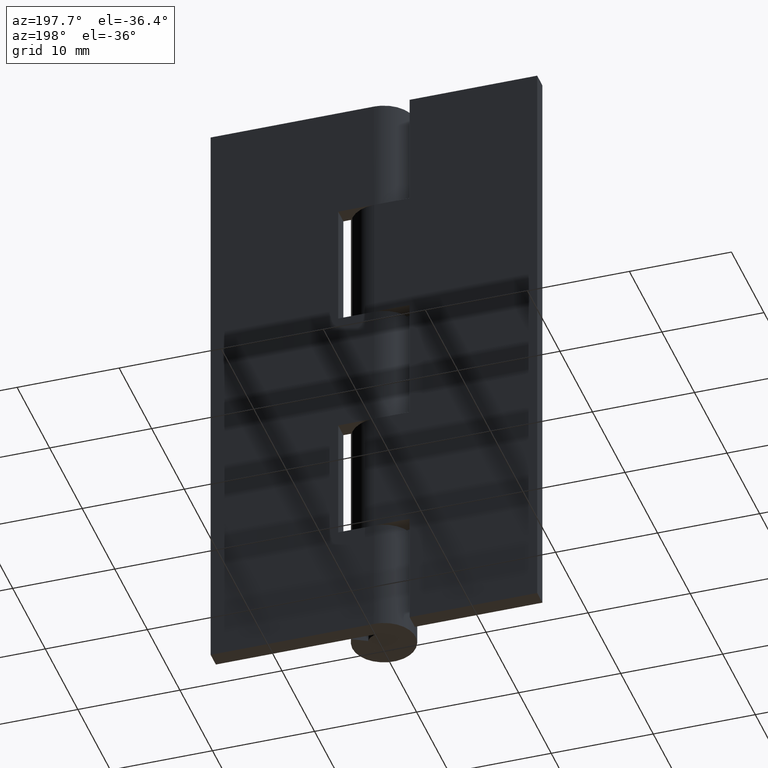
[diagram: clean part render]
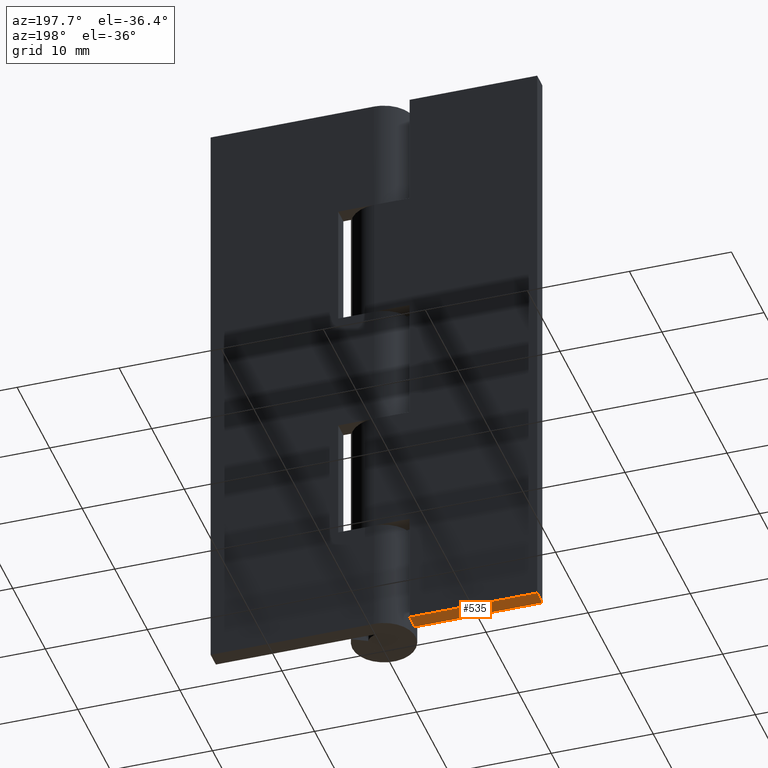
[diagram: same view with one face highlighted and labeled with its STEP entity id]
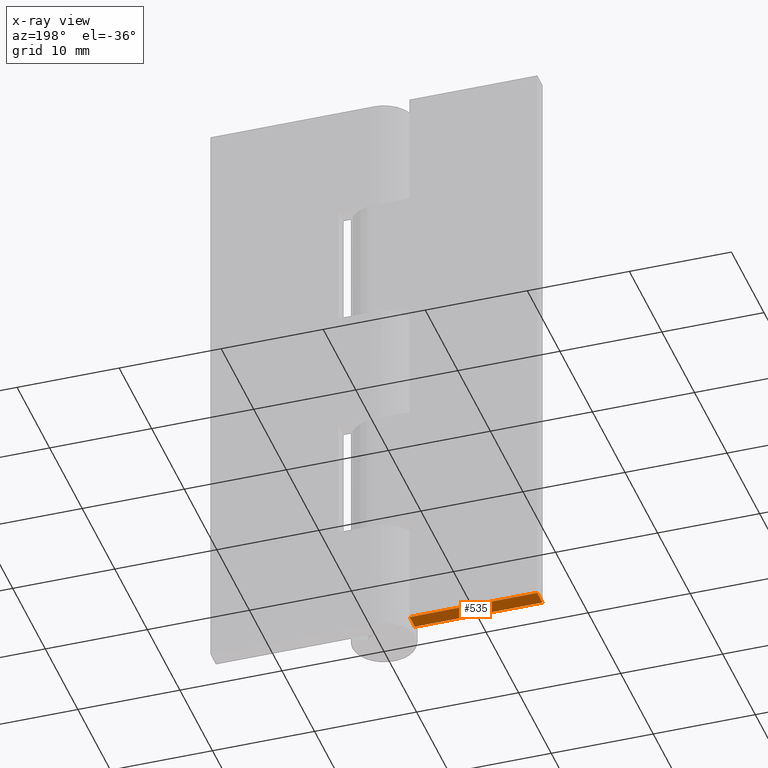
[diagram: x-ray of the same camera — body ghosted, the highlighted face saturated]
A machine part, auxiliary view. The second image highlights one B-rep face of the part: STEP entity #535.
The next image is the same camera in x-ray: the body ghosted, the highlighted face saturated — about 0% of this face is hidden behind the body in this view.
In plain terms, the highlighted face is a freeform B-spline surface patch.
Its self-contained STEP definition (entity closure, byte-faithful):
#241=CARTESIAN_POINT('',(-3.500000000000100,1.500000000000000,0.0));
#242=VERTEX_POINT('',#241);
#248=CARTESIAN_POINT('',(-3.500000000000100,3.099998000000050,-8.326673E-014));
#249=VERTEX_POINT('',#248);
#250=CARTESIAN_POINT('',(-3.500000000000100,1.500000000000000,0.0));
#251=CARTESIAN_POINT('',(-3.500000000000100,3.099998000000050,-8.326673E-014));
#252=QUASI_UNIFORM_CURVE('',1,(#250,#251),.UNSPECIFIED.,.F.,.U.);
#253=EDGE_CURVE('',#242,#249,#252,.T.);
#465=CARTESIAN_POINT('',(-16.0,3.099998000000000,0.0));
#466=VERTEX_POINT('',#465);
#467=CARTESIAN_POINT('',(-16.0,1.500000000000000,0.0));
#468=VERTEX_POINT('',#467);
#469=CARTESIAN_POINT('',(-16.0,3.099998000000000,0.0));
#470=CARTESIAN_POINT('',(-16.0,1.500000000000000,0.0));
#471=QUASI_UNIFORM_CURVE('',1,(#469,#470),.UNSPECIFIED.,.F.,.U.);
#472=EDGE_CURVE('',#466,#468,#471,.T.);
#516=CARTESIAN_POINT('',(-16.624374975772572,1.420080103001104,0.0));
#517=CARTESIAN_POINT('',(-2.875624688951403,1.420080103001104,0.0));
#518=CARTESIAN_POINT('',(-16.624374975772572,3.179917939914236,0.0));
#519=CARTESIAN_POINT('',(-2.875624688951403,3.179917939914236,0.0));
#520=B_SPLINE_SURFACE_WITH_KNOTS('',1,1,((#516,#518),(#517,#519)),.UNSPECIFIED.,.F.,.F.,.U.,(2,2),(2,2),(0.0,13.748750286821171),(0.041708334948495,0.958291687403247),.UNSPECIFIED.);
#521=CARTESIAN_POINT('',(-3.500000000000100,3.099998000000050,-8.326673E-014));
#522=CARTESIAN_POINT('',(-16.0,3.099998000000000,0.0));
#523=QUASI_UNIFORM_CURVE('',1,(#521,#522),.UNSPECIFIED.,.F.,.U.);
#524=EDGE_CURVE('',#249,#466,#523,.T.);
#525=ORIENTED_EDGE('',*,*,#524,.F.);
#526=ORIENTED_EDGE('',*,*,#253,.F.);
#527=CARTESIAN_POINT('',(-16.0,1.500000000000000,0.0));
#528=CARTESIAN_POINT('',(-3.500000000000100,1.500000000000000,0.0));
#529=QUASI_UNIFORM_CURVE('',1,(#527,#528),.UNSPECIFIED.,.F.,.U.);
#530=EDGE_CURVE('',#468,#242,#529,.T.);
#531=ORIENTED_EDGE('',*,*,#530,.F.);
#532=ORIENTED_EDGE('',*,*,#472,.F.);
#533=EDGE_LOOP('',(#525,#526,#531,#532));
#534=FACE_OUTER_BOUND('',#533,.T.);
#535=ADVANCED_FACE('',(#534),#520,.F.);